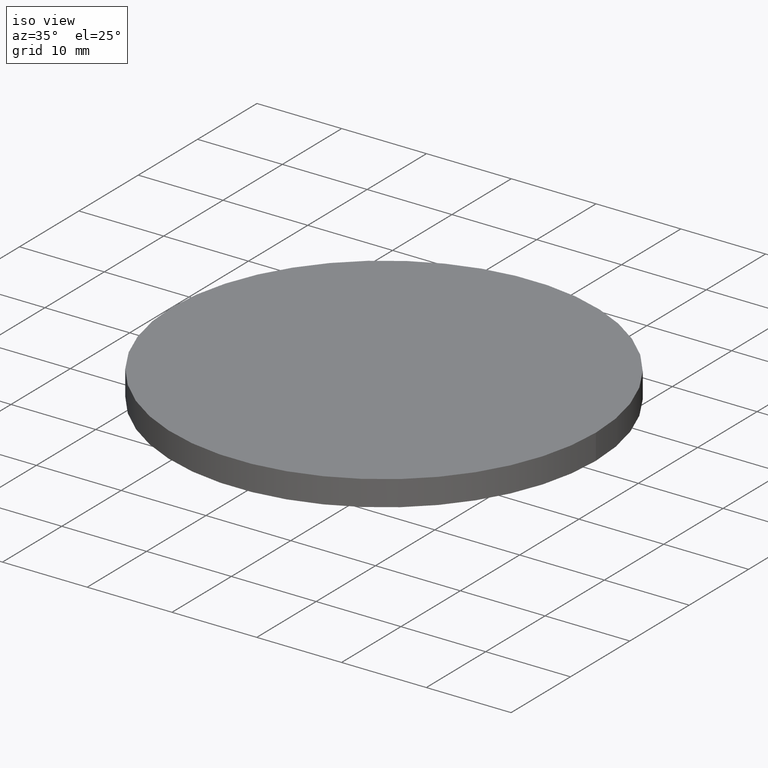
[diagram: clean part render]
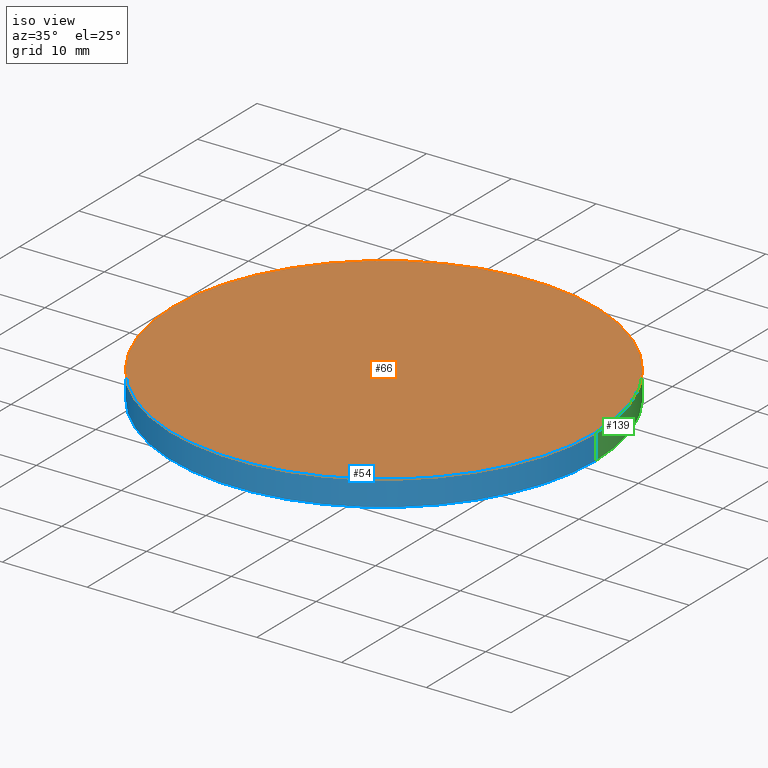
[diagram: same view with three faces highlighted in distinct colors, each labeled with its STEP entity id]
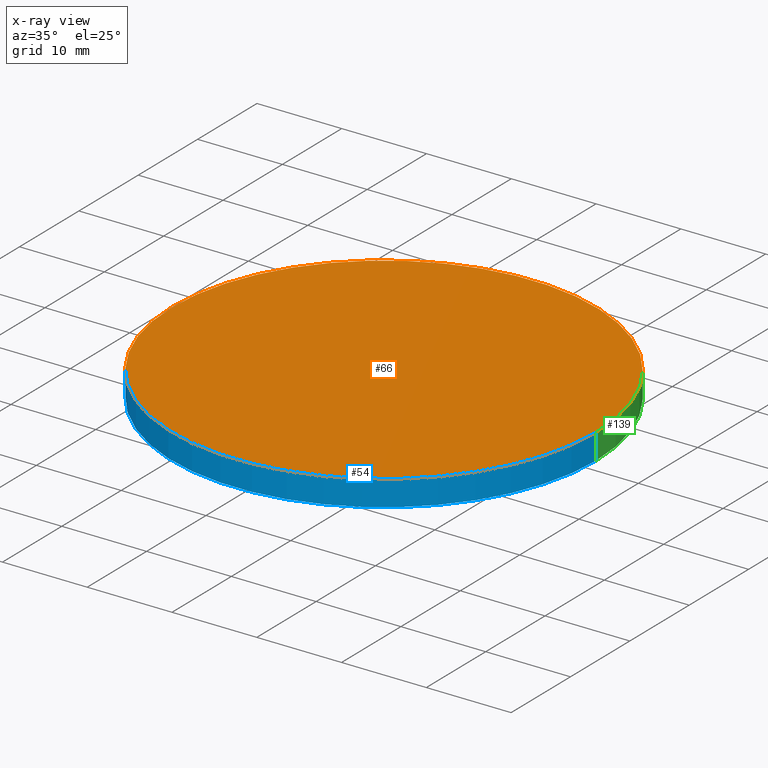
[diagram: x-ray of the same camera — body ghosted, the three highlighted faces saturated]
A machine part, iso view with three faces highlighted in distinct colors.
The next image is the same camera in x-ray (body ghosted, the three faces saturated) — at least one of them is partly hidden behind the body in this view.
Their STEP definitions:

[orange] entity #66 — the highlighted planar face has unit normal (0, 0, 1).
#4 = EDGE_CURVE ( 'NONE', #125, #10, #67, .T. ) ;
#5 = AXIS2_PLACEMENT_3D ( 'NONE', #47, #106, #34 ) ;
#7 = FACE_OUTER_BOUND ( 'NONE', #80, .T. ) ;
#8 = CARTESIAN_POINT ( 'NONE',  ( 0.0000000000000000000, 0.0000000000000000000, 3.000000000000000000 ) ) ;
#10 = VERTEX_POINT ( 'NONE', #68 ) ;
#12 = DIRECTION ( 'NONE',  ( 1.000000000000000000, 0.0000000000000000000, 0.0000000000000000000 ) ) ;
#20 = CARTESIAN_POINT ( 'NONE',  ( 25.00000000000000000, 3.061616997868383000E-015, 3.000000000000000000 ) ) ;
#25 = DIRECTION ( 'NONE',  ( 1.000000000000000000, 0.0000000000000000000, 0.0000000000000000000 ) ) ;
#34 = DIRECTION ( 'NONE',  ( 1.000000000000000000, 0.0000000000000000000, -0.0000000000000000000 ) ) ;
#47 = CARTESIAN_POINT ( 'NONE',  ( 0.0000000000000000000, 0.0000000000000000000, 3.000000000000000000 ) ) ;
#51 = EDGE_CURVE ( 'NONE', #10, #125, #83, .T. ) ;
#56 = CARTESIAN_POINT ( 'NONE',  ( 0.0000000000000000000, 0.0000000000000000000, 3.000000000000000000 ) ) ;
#62 = ORIENTED_EDGE ( 'NONE', *, *, #4, .T. ) ;
#66 = ADVANCED_FACE ( 'NONE', ( #7 ), #129, .T. ) ;
#67 = CIRCLE ( 'NONE', #69, 25.00000000000000000 ) ;
#68 = CARTESIAN_POINT ( 'NONE',  ( -25.00000000000000000, 0.0000000000000000000, 3.000000000000000000 ) ) ;
#69 = AXIS2_PLACEMENT_3D ( 'NONE', #8, #123, #25 ) ;
#80 = EDGE_LOOP ( 'NONE', ( #109, #62 ) ) ;
#83 = CIRCLE ( 'NONE', #112, 25.00000000000000000 ) ;
#90 = DIRECTION ( 'NONE',  ( 0.0000000000000000000, 0.0000000000000000000, 1.000000000000000000 ) ) ;
#106 = DIRECTION ( 'NONE',  ( 0.0000000000000000000, 0.0000000000000000000, 1.000000000000000000 ) ) ;
#109 = ORIENTED_EDGE ( 'NONE', *, *, #51, .T. ) ;
#112 = AXIS2_PLACEMENT_3D ( 'NONE', #56, #90, #12 ) ;
#123 = DIRECTION ( 'NONE',  ( 0.0000000000000000000, 0.0000000000000000000, 1.000000000000000000 ) ) ;
#125 = VERTEX_POINT ( 'NONE', #20 ) ;
#129 = PLANE ( 'NONE',  #5 ) ;

[blue] entity #54 — the highlighted cylindrical surface (partial cylindrical patch) has radius 25 mm, axis along (-0, -0, -1).
#2 = VECTOR ( 'NONE', #96, 1000.000000000000000 ) ;
#9 = AXIS2_PLACEMENT_3D ( 'NONE', #131, #13, #132 ) ;
#10 = VERTEX_POINT ( 'NONE', #68 ) ;
#12 = DIRECTION ( 'NONE',  ( 1.000000000000000000, 0.0000000000000000000, 0.0000000000000000000 ) ) ;
#13 = DIRECTION ( 'NONE',  ( 0.0000000000000000000, 0.0000000000000000000, 1.000000000000000000 ) ) ;
#18 = DIRECTION ( 'NONE',  ( -0.0000000000000000000, -0.0000000000000000000, -1.000000000000000000 ) ) ;
#20 = CARTESIAN_POINT ( 'NONE',  ( 25.00000000000000000, 3.061616997868383000E-015, 3.000000000000000000 ) ) ;
#21 = CARTESIAN_POINT ( 'NONE',  ( 25.00000000000000000, 3.061616997868383000E-015, 3.000000000000000000 ) ) ;
#27 = CIRCLE ( 'NONE', #9, 25.00000000000000000 ) ;
#28 = ORIENTED_EDGE ( 'NONE', *, *, #51, .F. ) ;
#35 = LINE ( 'NONE', #21, #53 ) ;
#39 = DIRECTION ( 'NONE',  ( -1.000000000000000000, 0.0000000000000000000, 0.0000000000000000000 ) ) ;
#43 = EDGE_LOOP ( 'NONE', ( #127, #28, #84, #87 ) ) ;
#46 = CARTESIAN_POINT ( 'NONE',  ( 25.00000000000000000, 3.061616997868383000E-015, 0.0000000000000000000 ) ) ;
#51 = EDGE_CURVE ( 'NONE', #10, #125, #83, .T. ) ;
#53 = VECTOR ( 'NONE', #18, 1000.000000000000000 ) ;
#54 = ADVANCED_FACE ( 'NONE', ( #100 ), #60, .T. ) ;
#56 = CARTESIAN_POINT ( 'NONE',  ( 0.0000000000000000000, 0.0000000000000000000, 3.000000000000000000 ) ) ;
#57 = VERTEX_POINT ( 'NONE', #74 ) ;
#60 = CYLINDRICAL_SURFACE ( 'NONE', #136, 25.00000000000000000 ) ;
#61 = CARTESIAN_POINT ( 'NONE',  ( 0.0000000000000000000, 0.0000000000000000000, 3.000000000000000000 ) ) ;
#68 = CARTESIAN_POINT ( 'NONE',  ( -25.00000000000000000, 0.0000000000000000000, 3.000000000000000000 ) ) ;
#73 = CARTESIAN_POINT ( 'NONE',  ( -25.00000000000000000, 0.0000000000000000000, 3.000000000000000000 ) ) ;
#74 = CARTESIAN_POINT ( 'NONE',  ( -25.00000000000000000, 0.0000000000000000000, 0.0000000000000000000 ) ) ;
#83 = CIRCLE ( 'NONE', #112, 25.00000000000000000 ) ;
#84 = ORIENTED_EDGE ( 'NONE', *, *, #101, .T. ) ;
#87 = ORIENTED_EDGE ( 'NONE', *, *, #95, .T. ) ;
#90 = DIRECTION ( 'NONE',  ( 0.0000000000000000000, 0.0000000000000000000, 1.000000000000000000 ) ) ;
#95 = EDGE_CURVE ( 'NONE', #57, #103, #27, .T. ) ;
#96 = DIRECTION ( 'NONE',  ( -0.0000000000000000000, -0.0000000000000000000, -1.000000000000000000 ) ) ;
#100 = FACE_OUTER_BOUND ( 'NONE', #43, .T. ) ;
#101 = EDGE_CURVE ( 'NONE', #10, #57, #134, .T. ) ;
#103 = VERTEX_POINT ( 'NONE', #46 ) ;
#105 = DIRECTION ( 'NONE',  ( -0.0000000000000000000, -0.0000000000000000000, -1.000000000000000000 ) ) ;
#112 = AXIS2_PLACEMENT_3D ( 'NONE', #56, #90, #12 ) ;
#115 = EDGE_CURVE ( 'NONE', #125, #103, #35, .T. ) ;
#125 = VERTEX_POINT ( 'NONE', #20 ) ;
#127 = ORIENTED_EDGE ( 'NONE', *, *, #115, .F. ) ;
#131 = CARTESIAN_POINT ( 'NONE',  ( 0.0000000000000000000, 0.0000000000000000000, 0.0000000000000000000 ) ) ;
#132 = DIRECTION ( 'NONE',  ( 1.000000000000000000, 0.0000000000000000000, 0.0000000000000000000 ) ) ;
#134 = LINE ( 'NONE', #73, #2 ) ;
#136 = AXIS2_PLACEMENT_3D ( 'NONE', #61, #105, #39 ) ;

[green] entity #139 — the highlighted cylindrical surface (partial cylindrical patch) has radius 25 mm, axis along (-0, -0, -1).
#1 = CARTESIAN_POINT ( 'NONE',  ( 0.0000000000000000000, 0.0000000000000000000, 3.000000000000000000 ) ) ;
#2 = VECTOR ( 'NONE', #96, 1000.000000000000000 ) ;
#4 = EDGE_CURVE ( 'NONE', #125, #10, #67, .T. ) ;
#8 = CARTESIAN_POINT ( 'NONE',  ( 0.0000000000000000000, 0.0000000000000000000, 3.000000000000000000 ) ) ;
#10 = VERTEX_POINT ( 'NONE', #68 ) ;
#14 = DIRECTION ( 'NONE',  ( 1.000000000000000000, 0.0000000000000000000, 0.0000000000000000000 ) ) ;
#15 = ORIENTED_EDGE ( 'NONE', *, *, #4, .F. ) ;
#18 = DIRECTION ( 'NONE',  ( -0.0000000000000000000, -0.0000000000000000000, -1.000000000000000000 ) ) ;
#20 = CARTESIAN_POINT ( 'NONE',  ( 25.00000000000000000, 3.061616997868383000E-015, 3.000000000000000000 ) ) ;
#21 = CARTESIAN_POINT ( 'NONE',  ( 25.00000000000000000, 3.061616997868383000E-015, 3.000000000000000000 ) ) ;
#25 = DIRECTION ( 'NONE',  ( 1.000000000000000000, 0.0000000000000000000, 0.0000000000000000000 ) ) ;
#30 = FACE_OUTER_BOUND ( 'NONE', #52, .T. ) ;
#33 = ORIENTED_EDGE ( 'NONE', *, *, #101, .F. ) ;
#35 = LINE ( 'NONE', #21, #53 ) ;
#46 = CARTESIAN_POINT ( 'NONE',  ( 25.00000000000000000, 3.061616997868383000E-015, 0.0000000000000000000 ) ) ;
#49 = AXIS2_PLACEMENT_3D ( 'NONE', #1, #50, #78 ) ;
#50 = DIRECTION ( 'NONE',  ( -0.0000000000000000000, -0.0000000000000000000, -1.000000000000000000 ) ) ;
#52 = EDGE_LOOP ( 'NONE', ( #15, #92, #104, #33 ) ) ;
#53 = VECTOR ( 'NONE', #18, 1000.000000000000000 ) ;
#57 = VERTEX_POINT ( 'NONE', #74 ) ;
#64 = CYLINDRICAL_SURFACE ( 'NONE', #49, 25.00000000000000000 ) ;
#67 = CIRCLE ( 'NONE', #69, 25.00000000000000000 ) ;
#68 = CARTESIAN_POINT ( 'NONE',  ( -25.00000000000000000, 0.0000000000000000000, 3.000000000000000000 ) ) ;
#69 = AXIS2_PLACEMENT_3D ( 'NONE', #8, #123, #25 ) ;
#73 = CARTESIAN_POINT ( 'NONE',  ( -25.00000000000000000, 0.0000000000000000000, 3.000000000000000000 ) ) ;
#74 = CARTESIAN_POINT ( 'NONE',  ( -25.00000000000000000, 0.0000000000000000000, 0.0000000000000000000 ) ) ;
#78 = DIRECTION ( 'NONE',  ( -1.000000000000000000, 0.0000000000000000000, 0.0000000000000000000 ) ) ;
#79 = EDGE_CURVE ( 'NONE', #103, #57, #89, .T. ) ;
#82 = CARTESIAN_POINT ( 'NONE',  ( 0.0000000000000000000, 0.0000000000000000000, 0.0000000000000000000 ) ) ;
#89 = CIRCLE ( 'NONE', #119, 25.00000000000000000 ) ;
#92 = ORIENTED_EDGE ( 'NONE', *, *, #115, .T. ) ;
#96 = DIRECTION ( 'NONE',  ( -0.0000000000000000000, -0.0000000000000000000, -1.000000000000000000 ) ) ;
#98 = DIRECTION ( 'NONE',  ( 0.0000000000000000000, 0.0000000000000000000, 1.000000000000000000 ) ) ;
#101 = EDGE_CURVE ( 'NONE', #10, #57, #134, .T. ) ;
#103 = VERTEX_POINT ( 'NONE', #46 ) ;
#104 = ORIENTED_EDGE ( 'NONE', *, *, #79, .T. ) ;
#115 = EDGE_CURVE ( 'NONE', #125, #103, #35, .T. ) ;
#119 = AXIS2_PLACEMENT_3D ( 'NONE', #82, #98, #14 ) ;
#123 = DIRECTION ( 'NONE',  ( 0.0000000000000000000, 0.0000000000000000000, 1.000000000000000000 ) ) ;
#125 = VERTEX_POINT ( 'NONE', #20 ) ;
#134 = LINE ( 'NONE', #73, #2 ) ;
#139 = ADVANCED_FACE ( 'NONE', ( #30 ), #64, .T. ) ;